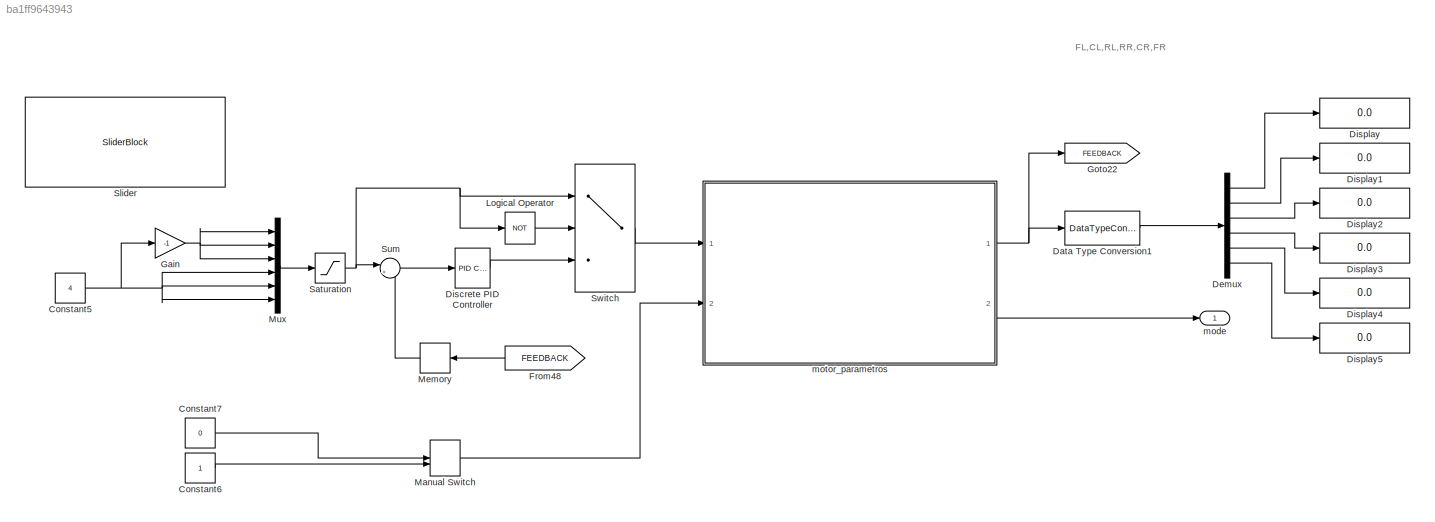
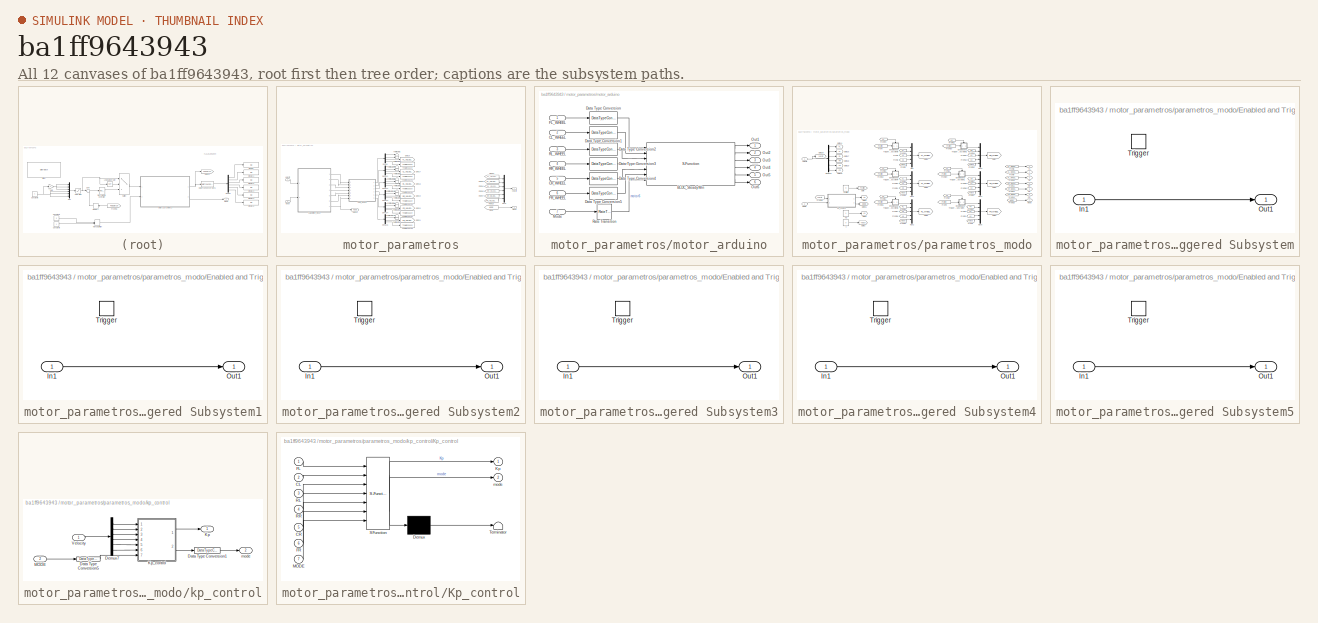
[diagram: thumbnail index - all 12 canvases of the model, root first then tree order]
MODEL slx_ba1ff9643943
KIND model
CONFIG AbsTol = auto
CONFIG EnableMultiTasking = on
CONFIG FixedStep = auto
CONFIG MaxStep = auto
CONFIG MinStep = auto
CONFIG RelTol = 1e-3
CONFIG SampleTimeConstraint = Unconstrained
CONFIG SolverName = FixedStepAuto
CONFIG StartTime = 0.0
CONFIG StopTime = inf
BLOCK [Constant] Constant5
  Value = 4
BLOCK [Constant] Constant6
BLOCK [Constant] Constant7
  Value = 0
BLOCK [DataTypeConversion] Data Type Conversion1
  OutDataTypeStr = double
  RndMeth = Floor
  SaturateOnIntegerOverflow = off
BLOCK [Demux] Demux
  Outputs = 6
  Ports = [1, 6]
BLOCK [Reference] Discrete PID Controller  REF=slpidlib/PID Controller
  Ports = [1, 1]
  SourceBlock = slpidlib/PID Controller
  SourceProductBaseCode = SL
  SourceType = PID 1dof
BLOCK [Display] Display
  Decimation = 1
  Ports = [1]
BLOCK [Display] Display1
  Decimation = 1
  Ports = [1]
BLOCK [Display] Display2
  Decimation = 1
  Ports = [1]
BLOCK [Display] Display3
  Decimation = 1
  Ports = [1]
BLOCK [Display] Display4
  Decimation = 1
  Ports = [1]
BLOCK [Display] Display5
  Decimation = 1
  Ports = [1]
BLOCK [From] From48
  GotoTag = FEEDBACK
  NameLocation = top
BLOCK [Gain] Gain
  Gain = -1
BLOCK [Goto] Goto22
  GotoTag = FEEDBACK
BLOCK [Logic] Logical Operator
  AllPortsSameDT = off
  Operator = NOT
  OutDataTypeStr = boolean
  Ports = [1, 1]
BLOCK [ManualSwitch] Manual Switch
BLOCK [Memory] Memory
  NameLocation = top
BLOCK [Mux] Mux
  DisplayOption = bar
  Inputs = 6
  Ports = [6, 1]
BLOCK [Saturate] Saturation
  LowerLimit = -10
  UpperLimit = 10
BLOCK [SliderBlock] Slider
  ScaleMax = 9
  ScaleMin = -9
BLOCK [Sum] Sum
  Inputs = |+-
  Ports = [2, 1]
BLOCK [Switch] Switch
  Criteria = u2 ~= 0
  InputSameDT = off
  NameLocation = top
  SaturateOnIntegerOverflow = off
BLOCK [Outport] mode
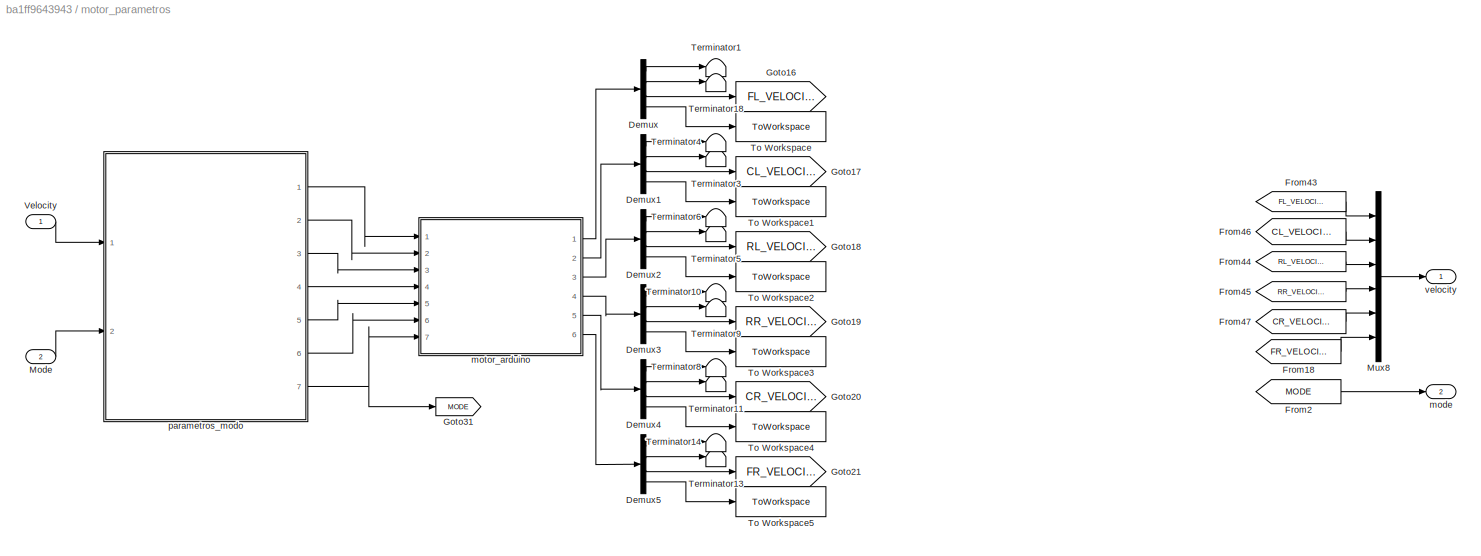
BLOCK [SubSystem] motor_parametros
  Ports = [2, 2]
  RequestExecContextInheritance = off
BLOCK [Demux] motor_parametros/Demux
  Ports = [1, 4]
BLOCK [Demux] motor_parametros/Demux1
  Ports = [1, 4]
BLOCK [Demux] motor_parametros/Demux2
  Ports = [1, 4]
BLOCK [Demux] motor_parametros/Demux3
  Ports = [1, 4]
BLOCK [Demux] motor_parametros/Demux4
  Ports = [1, 4]
BLOCK [Demux] motor_parametros/Demux5
  Ports = [1, 4]
BLOCK [From] motor_parametros/From18
  GotoTag = FR_VELOCITY
BLOCK [From] motor_parametros/From2
  GotoTag = MODE
BLOCK [From] motor_parametros/From43
  GotoTag = FL_VELOCITY
BLOCK [From] motor_parametros/From44
  GotoTag = RL_VELOCITY
BLOCK [From] motor_parametros/From45
  GotoTag = RR_VELOCITY
BLOCK [From] motor_parametros/From46
  GotoTag = CL_VELOCITY
BLOCK [From] motor_parametros/From47
  GotoTag = CR_VELOCITY
BLOCK [Goto] motor_parametros/Goto16
  GotoTag = FL_VELOCITY
BLOCK [Goto] motor_parametros/Goto17
  GotoTag = CL_VELOCITY
BLOCK [Goto] motor_parametros/Goto18
  GotoTag = RL_VELOCITY
BLOCK [Goto] motor_parametros/Goto19
  GotoTag = RR_VELOCITY
BLOCK [Goto] motor_parametros/Goto20
  GotoTag = CR_VELOCITY
BLOCK [Goto] motor_parametros/Goto21
  GotoTag = FR_VELOCITY
BLOCK [Goto] motor_parametros/Goto31
  GotoTag = MODE
BLOCK [Inport] motor_parametros/Mode
  Port = 2
BLOCK [Mux] motor_parametros/Mux8
  DisplayOption = bar
  Inputs = 6
  Ports = [6, 1]
BLOCK [Terminator] motor_parametros/Terminator1
BLOCK [Terminator] motor_parametros/Terminator10
BLOCK [Terminator] motor_parametros/Terminator11
BLOCK [Terminator] motor_parametros/Terminator13
BLOCK [Terminator] motor_parametros/Terminator14
BLOCK [Terminator] motor_parametros/Terminator18
BLOCK [Terminator] motor_parametros/Terminator3
BLOCK [Terminator] motor_parametros/Terminator4
BLOCK [Terminator] motor_parametros/Terminator5
BLOCK [Terminator] motor_parametros/Terminator6
BLOCK [Terminator] motor_parametros/Terminator8
BLOCK [Terminator] motor_parametros/Terminator9
BLOCK [ToWorkspace] motor_parametros/To Workspace
  FixptAsFi = on
  MaxDataPoints = inf
  Ports = [1]
  SampleTime = -1
  SaveFormat = Timeseries
  VariableName = FL
BLOCK [ToWorkspace] motor_parametros/To Workspace1
  FixptAsFi = on
  MaxDataPoints = inf
  Ports = [1]
  SampleTime = -1
  SaveFormat = Timeseries
  VariableName = CL
BLOCK [ToWorkspace] motor_parametros/To Workspace2
  FixptAsFi = on
  MaxDataPoints = inf
  Ports = [1]
  SampleTime = -1
  SaveFormat = Timeseries
  VariableName = RL
BLOCK [ToWorkspace] motor_parametros/To Workspace3
  FixptAsFi = on
  MaxDataPoints = inf
  Ports = [1]
  SampleTime = -1
  SaveFormat = Timeseries
  VariableName = RR
BLOCK [ToWorkspace] motor_parametros/To Workspace4
  FixptAsFi = on
  MaxDataPoints = inf
  Ports = [1]
  SampleTime = -1
  SaveFormat = Timeseries
  VariableName = CR
BLOCK [ToWorkspace] motor_parametros/To Workspace5
  FixptAsFi = on
  MaxDataPoints = inf
  Ports = [1]
  SampleTime = -1
  SaveFormat = Timeseries
  VariableName = FR
BLOCK [Inport] motor_parametros/Velocity
BLOCK [Outport] motor_parametros/mode
  Port = 2
BLOCK [SubSystem] motor_parametros/motor_arduino
  Ports = [7, 6]
  RequestExecContextInheritance = off
BLOCK [S-Function] motor_parametros/motor_arduino/BLDC_SteadyWin
  CopyFcn = set_param(gcbh,'LinkStatus','none')
  EnableBusSupport = off
  FunctionName = BLDC_SteadyWin
  InitFcn = try, set_param(gcb,'FunctionName','BLDC_SteadyWin'), end
  OpenFcn = sfunctionwizard(gcbh)
  Ports = [7, 6]
  PreSaveFcn = try, set_param(gcb,'FunctionName','BLDC_SteadyWin'), end
  SFcnIsStateOwnerBlock = off
  SFunctionDeploymentMode = off
  SFunctionModules = BLDC_SteadyWin_wrapper
BLOCK [Inport] motor_parametros/motor_arduino/CL_WHEEL
  Port = 2
BLOCK [Inport] motor_parametros/motor_arduino/CR_WHEEL
  Port = 5
BLOCK [DataTypeConversion] motor_parametros/motor_arduino/Data Type Conversion
  OutDataTypeStr = single
  RndMeth = Floor
  SaturateOnIntegerOverflow = off
BLOCK [DataTypeConversion] motor_parametros/motor_arduino/Data Type Conversion1
  OutDataTypeStr = single
  RndMeth = Floor
  SaturateOnIntegerOverflow = off
BLOCK [DataTypeConversion] motor_parametros/motor_arduino/Data Type Conversion2
  OutDataTypeStr = single
  RndMeth = Floor
  SaturateOnIntegerOverflow = off
BLOCK [DataTypeConversion] motor_parametros/motor_arduino/Data Type Conversion3
  OutDataTypeStr = single
  RndMeth = Floor
  SaturateOnIntegerOverflow = off
BLOCK [DataTypeConversion] motor_parametros/motor_arduino/Data Type Conversion4
  OutDataTypeStr = single
  RndMeth = Floor
  SaturateOnIntegerOverflow = off
BLOCK [DataTypeConversion] motor_parametros/motor_arduino/Data Type Conversion5
  OutDataTypeStr = single
  RndMeth = Floor
  SaturateOnIntegerOverflow = off
BLOCK [Inport] motor_parametros/motor_arduino/FL_WHEEL
BLOCK [Inport] motor_parametros/motor_arduino/FR_WHEEL
  Port = 6
BLOCK [Inport] motor_parametros/motor_arduino/Mode
  Port = 7
BLOCK [Outport] motor_parametros/motor_arduino/Out1
BLOCK [Outport] motor_parametros/motor_arduino/Out2
  Port = 2
BLOCK [Outport] motor_parametros/motor_arduino/Out3
  Port = 3
BLOCK [Outport] motor_parametros/motor_arduino/Out4
  Port = 4
BLOCK [Outport] motor_parametros/motor_arduino/Out5
  Port = 5
BLOCK [Outport] motor_parametros/motor_arduino/Out6
  Port = 6
BLOCK [Inport] motor_parametros/motor_arduino/RL_WHEEL
  Port = 3
BLOCK [Inport] motor_parametros/motor_arduino/RR_WHEEL
  Port = 4
BLOCK [RateTransition] motor_parametros/motor_arduino/Rate Transition
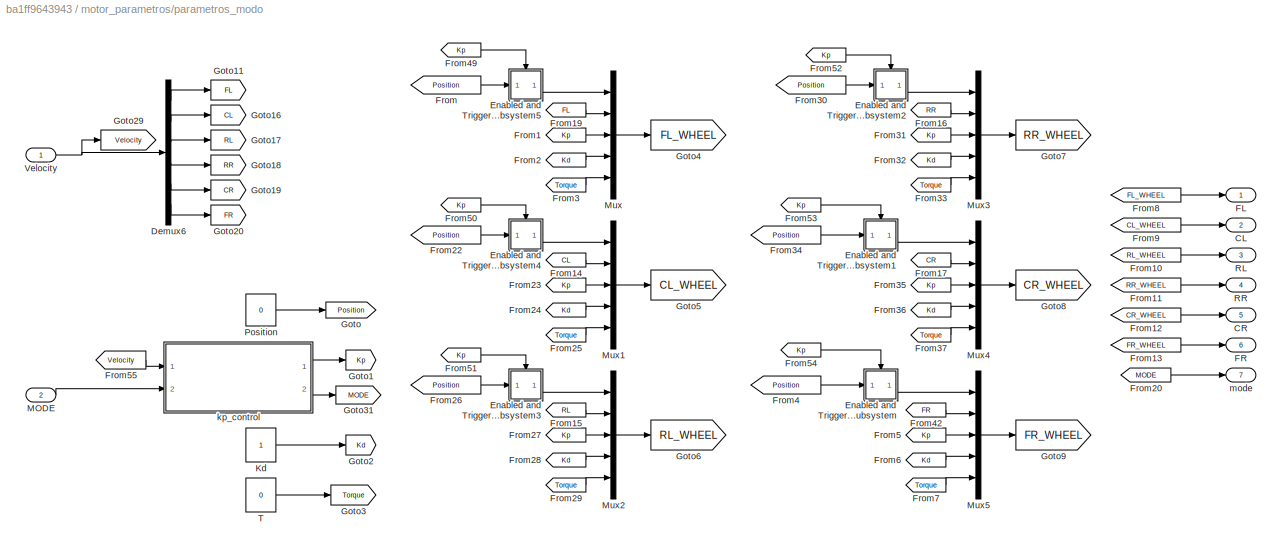
BLOCK [SubSystem] motor_parametros/parametros_modo
  Ports = [2, 7]
  RequestExecContextInheritance = off
BLOCK [Outport] motor_parametros/parametros_modo/CL
  Port = 2
BLOCK [Outport] motor_parametros/parametros_modo/CR
  Port = 5
BLOCK [Demux] motor_parametros/parametros_modo/Demux6
  Outputs = 6
  Ports = [1, 6]
BLOCK [SubSystem] motor_parametros/parametros_modo/Enabled and Triggered Subsystem
  Ports = [1, 1, 0, 1]
  RequestExecContextInheritance = off
  TreatAsAtomicUnit = on
BLOCK [Inport] motor_parametros/parametros_modo/Enabled and Triggered Subsystem/In1
BLOCK [Outport] motor_parametros/parametros_modo/Enabled and Triggered Subsystem/Out1
BLOCK [TriggerPort] motor_parametros/parametros_modo/Enabled and Triggered Subsystem/Trigger
  Ports = []
  StatesWhenEnabling = held
  VariantControl = Variant
BLOCK [SubSystem] motor_parametros/parametros_modo/Enabled and Triggered Subsystem1
  Ports = [1, 1, 0, 1]
  RequestExecContextInheritance = off
  TreatAsAtomicUnit = on
BLOCK [Inport] motor_parametros/parametros_modo/Enabled and Triggered Subsystem1/In1
BLOCK [Outport] motor_parametros/parametros_modo/Enabled and Triggered Subsystem1/Out1
BLOCK [TriggerPort] motor_parametros/parametros_modo/Enabled and Triggered Subsystem1/Trigger
  Ports = []
  StatesWhenEnabling = held
  VariantControl = Variant
BLOCK [SubSystem] motor_parametros/parametros_modo/Enabled and Triggered Subsystem2
  Ports = [1, 1, 0, 1]
  RequestExecContextInheritance = off
  TreatAsAtomicUnit = on
BLOCK [Inport] motor_parametros/parametros_modo/Enabled and Triggered Subsystem2/In1
BLOCK [Outport] motor_parametros/parametros_modo/Enabled and Triggered Subsystem2/Out1
BLOCK [TriggerPort] motor_parametros/parametros_modo/Enabled and Triggered Subsystem2/Trigger
  Ports = []
  StatesWhenEnabling = held
  VariantControl = Variant
BLOCK [SubSystem] motor_parametros/parametros_modo/Enabled and Triggered Subsystem3
  Ports = [1, 1, 0, 1]
  RequestExecContextInheritance = off
  TreatAsAtomicUnit = on
BLOCK [Inport] motor_parametros/parametros_modo/Enabled and Triggered Subsystem3/In1
BLOCK [Outport] motor_parametros/parametros_modo/Enabled and Triggered Subsystem3/Out1
BLOCK [TriggerPort] motor_parametros/parametros_modo/Enabled and Triggered Subsystem3/Trigger
  Ports = []
  StatesWhenEnabling = held
  VariantControl = Variant
BLOCK [SubSystem] motor_parametros/parametros_modo/Enabled and Triggered Subsystem4
  Ports = [1, 1, 0, 1]
  RequestExecContextInheritance = off
  TreatAsAtomicUnit = on
BLOCK [Inport] motor_parametros/parametros_modo/Enabled and Triggered Subsystem4/In1
BLOCK [Outport] motor_parametros/parametros_modo/Enabled and Triggered Subsystem4/Out1
BLOCK [TriggerPort] motor_parametros/parametros_modo/Enabled and Triggered Subsystem4/Trigger
  Ports = []
  StatesWhenEnabling = held
  VariantControl = Variant
BLOCK [SubSystem] motor_parametros/parametros_modo/Enabled and Triggered Subsystem5
  Ports = [1, 1, 0, 1]
  RequestExecContextInheritance = off
  TreatAsAtomicUnit = on
BLOCK [Inport] motor_parametros/parametros_modo/Enabled and Triggered Subsystem5/In1
BLOCK [Outport] motor_parametros/parametros_modo/Enabled and Triggered Subsystem5/Out1
BLOCK [TriggerPort] motor_parametros/parametros_modo/Enabled and Triggered Subsystem5/Trigger
  Ports = []
  StatesWhenEnabling = held
  VariantControl = Variant
BLOCK [Outport] motor_parametros/parametros_modo/FL
BLOCK [Outport] motor_parametros/parametros_modo/FR
  Port = 6
BLOCK [From] motor_parametros/parametros_modo/From
  GotoTag = Position
BLOCK [From] motor_parametros/parametros_modo/From1
  GotoTag = Kp
BLOCK [From] motor_parametros/parametros_modo/From10
  GotoTag = RL_WHEEL
BLOCK [From] motor_parametros/parametros_modo/From11
  GotoTag = RR_WHEEL
BLOCK [From] motor_parametros/parametros_modo/From12
  GotoTag = CR_WHEEL
BLOCK [From] motor_parametros/parametros_modo/From13
  GotoTag = FR_WHEEL
BLOCK [From] motor_parametros/parametros_modo/From14
  GotoTag = CL
BLOCK [From] motor_parametros/parametros_modo/From15
  GotoTag = RL
BLOCK [From] motor_parametros/parametros_modo/From16
  GotoTag = RR
BLOCK [From] motor_parametros/parametros_modo/From17
  GotoTag = CR
BLOCK [From] motor_parametros/parametros_modo/From19
  GotoTag = FL
BLOCK [From] motor_parametros/parametros_modo/From2
  GotoTag = Kd
BLOCK [From] motor_parametros/parametros_modo/From20
  GotoTag = MODE
BLOCK [From] motor_parametros/parametros_modo/From22
  GotoTag = Position
BLOCK [From] motor_parametros/parametros_modo/From23
  GotoTag = Kp
BLOCK [From] motor_parametros/parametros_modo/From24
  GotoTag = Kd
BLOCK [From] motor_parametros/parametros_modo/From25
  GotoTag = Torque
BLOCK [From] motor_parametros/parametros_modo/From26
  GotoTag = Position
BLOCK [From] motor_parametros/parametros_modo/From27
  GotoTag = Kp
BLOCK [From] motor_parametros/parametros_modo/From28
  GotoTag = Kd
BLOCK [From] motor_parametros/parametros_modo/From29
  GotoTag = Torque
BLOCK [From] motor_parametros/parametros_modo/From3
  GotoTag = Torque
BLOCK [From] motor_parametros/parametros_modo/From30
  GotoTag = Position
BLOCK [From] motor_parametros/parametros_modo/From31
  GotoTag = Kp
  NameLocation = top
BLOCK [From] motor_parametros/parametros_modo/From32
  GotoTag = Kd
BLOCK [From] motor_parametros/parametros_modo/From33
  GotoTag = Torque
BLOCK [From] motor_parametros/parametros_modo/From34
  GotoTag = Position
BLOCK [From] motor_parametros/parametros_modo/From35
  GotoTag = Kp
BLOCK [From] motor_parametros/parametros_modo/From36
  GotoTag = Kd
BLOCK [From] motor_parametros/parametros_modo/From37
  GotoTag = Torque
BLOCK [From] motor_parametros/parametros_modo/From4
  GotoTag = Position
BLOCK [From] motor_parametros/parametros_modo/From42
  GotoTag = FR
BLOCK [From] motor_parametros/parametros_modo/From49
  GotoTag = Kp
BLOCK [From] motor_parametros/parametros_modo/From5
  GotoTag = Kp
BLOCK [From] motor_parametros/parametros_modo/From50
  GotoTag = Kp
BLOCK [From] motor_parametros/parametros_modo/From51
  GotoTag = Kp
BLOCK [From] motor_parametros/parametros_modo/From52
  GotoTag = Kp
BLOCK [From] motor_parametros/parametros_modo/From53
  GotoTag = Kp
BLOCK [From] motor_parametros/parametros_modo/From54
  GotoTag = Kp
BLOCK [From] motor_parametros/parametros_modo/From55
  GotoTag = Velocity
BLOCK [From] motor_parametros/parametros_modo/From6
  GotoTag = Kd
BLOCK [From] motor_parametros/parametros_modo/From7
  GotoTag = Torque
BLOCK [From] motor_parametros/parametros_modo/From8
  GotoTag = FL_WHEEL
BLOCK [From] motor_parametros/parametros_modo/From9
  GotoTag = CL_WHEEL
BLOCK [Goto] motor_parametros/parametros_modo/Goto
  GotoTag = Position
BLOCK [Goto] motor_parametros/parametros_modo/Goto1
  GotoTag = Kp
BLOCK [Goto] motor_parametros/parametros_modo/Goto11
  GotoTag = FL
BLOCK [Goto] motor_parametros/parametros_modo/Goto16
  GotoTag = CL
BLOCK [Goto] motor_parametros/parametros_modo/Goto17
  GotoTag = RL
BLOCK [Goto] motor_parametros/parametros_modo/Goto18
  GotoTag = RR
BLOCK [Goto] motor_parametros/parametros_modo/Goto19
  GotoTag = CR
BLOCK [Goto] motor_parametros/parametros_modo/Goto2
  GotoTag = Kd
BLOCK [Goto] motor_parametros/parametros_modo/Goto20
  GotoTag = FR
BLOCK [Goto] motor_parametros/parametros_modo/Goto29
  GotoTag = Velocity
BLOCK [Goto] motor_parametros/parametros_modo/Goto3
  GotoTag = Torque
BLOCK [Goto] motor_parametros/parametros_modo/Goto31
  GotoTag = MODE
BLOCK [Goto] motor_parametros/parametros_modo/Goto4
  GotoTag = FL_WHEEL
BLOCK [Goto] motor_parametros/parametros_modo/Goto5
  GotoTag = CL_WHEEL
BLOCK [Goto] motor_parametros/parametros_modo/Goto6
  GotoTag = RL_WHEEL
BLOCK [Goto] motor_parametros/parametros_modo/Goto7
  GotoTag = RR_WHEEL
BLOCK [Goto] motor_parametros/parametros_modo/Goto8
  GotoTag = CR_WHEEL
BLOCK [Goto] motor_parametros/parametros_modo/Goto9
  GotoTag = FR_WHEEL
BLOCK [Constant] motor_parametros/parametros_modo/Kd
  SampleTime = -1
BLOCK [Inport] motor_parametros/parametros_modo/MODE
  Port = 2
BLOCK [Mux] motor_parametros/parametros_modo/Mux
  DisplayOption = bar
  Inputs = 5
  Ports = [5, 1]
BLOCK [Mux] motor_parametros/parametros_modo/Mux1
  DisplayOption = bar
  Inputs = 5
  Ports = [5, 1]
BLOCK [Mux] motor_parametros/parametros_modo/Mux2
  DisplayOption = bar
  Inputs = 5
  Ports = [5, 1]
BLOCK [Mux] motor_parametros/parametros_modo/Mux3
  DisplayOption = bar
  Inputs = 5
  Ports = [5, 1]
BLOCK [Mux] motor_parametros/parametros_modo/Mux4
  DisplayOption = bar
  Inputs = 5
  Ports = [5, 1]
BLOCK [Mux] motor_parametros/parametros_modo/Mux5
  DisplayOption = bar
  Inputs = 5
  Ports = [5, 1]
BLOCK [Constant] motor_parametros/parametros_modo/Position
  SampleTime = -1
  Value = 0
BLOCK [Outport] motor_parametros/parametros_modo/RL
  Port = 3
BLOCK [Outport] motor_parametros/parametros_modo/RR
  Port = 4
BLOCK [Constant] motor_parametros/parametros_modo/T
  SampleTime = -1
  Value = 0
BLOCK [Inport] motor_parametros/parametros_modo/Velocity
BLOCK [SubSystem] motor_parametros/parametros_modo/kp_control
  Ports = [2, 2]
  RequestExecContextInheritance = off
BLOCK [DataTypeConversion] motor_parametros/parametros_modo/kp_control/Data Type Conversion1
  OutDataTypeStr = uint8
  RndMeth = Floor
  SaturateOnIntegerOverflow = off
BLOCK [DataTypeConversion] motor_parametros/parametros_modo/kp_control/Data Type Conversion5
  OutDataTypeStr = double
  RndMeth = Floor
  SaturateOnIntegerOverflow = off
BLOCK [Demux] motor_parametros/parametros_modo/kp_control/Demux7
  Outputs = 6
  Ports = [1, 6]
BLOCK [Outport] motor_parametros/parametros_modo/kp_control/Kp
BLOCK [SubSystem] motor_parametros/parametros_modo/kp_control/Kp_control
  ErrorFcn = Stateflow.Translate.translate
  PermitHierarchicalResolution = ExplicitOnly
  Ports = [7, 2]
  RequestExecContextInheritance = off
  SFBlockType = MATLAB Function
  TreatAsAtomicUnit = on
BLOCK [Demux] motor_parametros/parametros_modo/kp_control/Kp_control/ Demux 
  Outputs = 1
  Ports = [1, 1]
BLOCK [S-Function] motor_parametros/parametros_modo/kp_control/Kp_control/ SFunction 
  EnableBusSupport = on
  FunctionName = sf_sfun
  PortCounts = [7 3]
  Ports = [7, 3]
  SFcnIsStateOwnerBlock = off
  SFunctionDeploymentMode = off
  Tag = Stateflow S-Function 1
BLOCK [Terminator] motor_parametros/parametros_modo/kp_control/Kp_control/ Terminator 
BLOCK [Inport] motor_parametros/parametros_modo/kp_control/Kp_control/CL
  Port = 2
BLOCK [Inport] motor_parametros/parametros_modo/kp_control/Kp_control/CR
  Port = 5
BLOCK [Inport] motor_parametros/parametros_modo/kp_control/Kp_control/FL
BLOCK [Inport] motor_parametros/parametros_modo/kp_control/Kp_control/FR
  Port = 6
BLOCK [Outport] motor_parametros/parametros_modo/kp_control/Kp_control/Kp
BLOCK [Inport] motor_parametros/parametros_modo/kp_control/Kp_control/MODE
  Port = 7
BLOCK [Inport] motor_parametros/parametros_modo/kp_control/Kp_control/RL
  Port = 3
BLOCK [Inport] motor_parametros/parametros_modo/kp_control/Kp_control/RR
  Port = 4
BLOCK [Outport] motor_parametros/parametros_modo/kp_control/Kp_control/mode
  Port = 2
BLOCK [Inport] motor_parametros/parametros_modo/kp_control/MODE
  Port = 2
BLOCK [Inport] motor_parametros/parametros_modo/kp_control/Velocity
BLOCK [Outport] motor_parametros/parametros_modo/kp_control/mode
  Port = 2
BLOCK [Outport] motor_parametros/parametros_modo/mode
  Port = 7
BLOCK [Outport] motor_parametros/velocity
ANNOTATION (root): FL,CL,RL,RR,CR,FR
NET Constant5:1 -> Gain:1, Mux:4, Mux:5, Mux:6
LINE Constant6:1 -> Manual Switch:2
LINE Constant7:1 -> Manual Switch:1
LINE Data Type Conversion1:1 -> Demux:1
LINE Demux:1 -> Display:1
LINE Demux:2 -> Display1:1
LINE Demux:3 -> Display2:1
LINE Demux:4 -> Display3:1
LINE Demux:5 -> Display4:1
LINE Demux:6 -> Display5:1
LINE Discrete PID Controller:1 -> Switch:3
LINE From48:1 -> Memory:1
NET Gain:1 -> Mux:1, Mux:2, Mux:3
LINE Logical Operator:1 -> Switch:2
LINE Manual Switch:1 -> motor_parametros:2
LINE Memory:1 -> Sum:2
LINE Mux:1 -> Saturation:1
NET Saturation:1 -> Logical Operator:1, Sum:1, Switch:1
LINE Sum:1 -> Discrete PID Controller:1
LINE Switch:1 -> motor_parametros:1
LINE motor_parametros/Demux1:1 -> motor_parametros/Terminator4:1
LINE motor_parametros/Demux1:2 -> motor_parametros/Terminator3:1
LINE motor_parametros/Demux1:3 -> motor_parametros/Goto17:1
LINE motor_parametros/Demux1:4 -> motor_parametros/To Workspace1:1
LINE motor_parametros/Demux2:1 -> motor_parametros/Terminator6:1
LINE motor_parametros/Demux2:2 -> motor_parametros/Terminator5:1
LINE motor_parametros/Demux2:3 -> motor_parametros/Goto18:1
LINE motor_parametros/Demux2:4 -> motor_parametros/To Workspace2:1
LINE motor_parametros/Demux3:1 -> motor_parametros/Terminator10:1
LINE motor_parametros/Demux3:2 -> motor_parametros/Terminator9:1
LINE motor_parametros/Demux3:3 -> motor_parametros/Goto19:1
LINE motor_parametros/Demux3:4 -> motor_parametros/To Workspace3:1
LINE motor_parametros/Demux4:1 -> motor_parametros/Terminator8:1
LINE motor_parametros/Demux4:2 -> motor_parametros/Terminator11:1
LINE motor_parametros/Demux4:3 -> motor_parametros/Goto20:1
LINE motor_parametros/Demux4:4 -> motor_parametros/To Workspace4:1
LINE motor_parametros/Demux5:1 -> motor_parametros/Terminator14:1
LINE motor_parametros/Demux5:2 -> motor_parametros/Terminator13:1
LINE motor_parametros/Demux5:3 -> motor_parametros/Goto21:1
LINE motor_parametros/Demux5:4 -> motor_parametros/To Workspace5:1
LINE motor_parametros/Demux:1 -> motor_parametros/Terminator1:1
LINE motor_parametros/Demux:2 -> motor_parametros/Terminator18:1
LINE motor_parametros/Demux:3 -> motor_parametros/Goto16:1
LINE motor_parametros/Demux:4 -> motor_parametros/To Workspace:1
LINE motor_parametros/From18:1 -> motor_parametros/Mux8:6
LINE motor_parametros/From2:1 -> motor_parametros/mode:1
LINE motor_parametros/From43:1 -> motor_parametros/Mux8:1
LINE motor_parametros/From44:1 -> motor_parametros/Mux8:3
LINE motor_parametros/From45:1 -> motor_parametros/Mux8:4
LINE motor_parametros/From46:1 -> motor_parametros/Mux8:2
LINE motor_parametros/From47:1 -> motor_parametros/Mux8:5
LINE motor_parametros/Mode:1 -> motor_parametros/parametros_modo:2
LINE motor_parametros/Mux8:1 -> motor_parametros/velocity:1
LINE motor_parametros/Velocity:1 -> motor_parametros/parametros_modo:1
LINE motor_parametros/motor_arduino/BLDC_SteadyWin:1 -> motor_parametros/motor_arduino/Out1:1
LINE motor_parametros/motor_arduino/BLDC_SteadyWin:2 -> motor_parametros/motor_arduino/Out2:1
LINE motor_parametros/motor_arduino/BLDC_SteadyWin:3 -> motor_parametros/motor_arduino/Out3:1
LINE motor_parametros/motor_arduino/BLDC_SteadyWin:4 -> motor_parametros/motor_arduino/Out4:1
LINE motor_parametros/motor_arduino/BLDC_SteadyWin:5 -> motor_parametros/motor_arduino/Out5:1
LINE motor_parametros/motor_arduino/BLDC_SteadyWin:6 -> motor_parametros/motor_arduino/Out6:1
LINE motor_parametros/motor_arduino/CL_WHEEL:1 -> motor_parametros/motor_arduino/Data Type Conversion1:1
LINE motor_parametros/motor_arduino/CR_WHEEL:1 -> motor_parametros/motor_arduino/Data Type Conversion4:1
LINE motor_parametros/motor_arduino/Data Type Conversion1:1 -> motor_parametros/motor_arduino/BLDC_SteadyWin:2
LINE motor_parametros/motor_arduino/Data Type Conversion2:1 -> motor_parametros/motor_arduino/BLDC_SteadyWin:3
LINE motor_parametros/motor_arduino/Data Type Conversion3:1 -> motor_parametros/motor_arduino/BLDC_SteadyWin:4
LINE motor_parametros/motor_arduino/Data Type Conversion4:1 -> motor_parametros/motor_arduino/BLDC_SteadyWin:5
LINE motor_parametros/motor_arduino/Data Type Conversion5:1 -> motor_parametros/motor_arduino/BLDC_SteadyWin:6
LINE motor_parametros/motor_arduino/Data Type Conversion:1 -> motor_parametros/motor_arduino/BLDC_SteadyWin:1
LINE motor_parametros/motor_arduino/FL_WHEEL:1 -> motor_parametros/motor_arduino/Data Type Conversion:1
LINE motor_parametros/motor_arduino/FR_WHEEL:1 -> motor_parametros/motor_arduino/Data Type Conversion5:1
LINE motor_parametros/motor_arduino/Mode:1 -> motor_parametros/motor_arduino/Rate Transition:1
LINE motor_parametros/motor_arduino/RL_WHEEL:1 -> motor_parametros/motor_arduino/Data Type Conversion2:1
LINE motor_parametros/motor_arduino/RR_WHEEL:1 -> motor_parametros/motor_arduino/Data Type Conversion3:1
LINE motor_parametros/motor_arduino/Rate Transition:1 -> motor_parametros/motor_arduino/BLDC_SteadyWin:7
LINE motor_parametros/motor_arduino:1 -> motor_parametros/Demux:1
LINE motor_parametros/motor_arduino:2 -> motor_parametros/Demux1:1
LINE motor_parametros/motor_arduino:3 -> motor_parametros/Demux2:1
LINE motor_parametros/motor_arduino:4 -> motor_parametros/Demux3:1
LINE motor_parametros/motor_arduino:5 -> motor_parametros/Demux4:1
LINE motor_parametros/motor_arduino:6 -> motor_parametros/Demux5:1
LINE motor_parametros/parametros_modo/Demux6:1 -> motor_parametros/parametros_modo/Goto11:1
LINE motor_parametros/parametros_modo/Demux6:2 -> motor_parametros/parametros_modo/Goto16:1
LINE motor_parametros/parametros_modo/Demux6:3 -> motor_parametros/parametros_modo/Goto17:1
LINE motor_parametros/parametros_modo/Demux6:4 -> motor_parametros/parametros_modo/Goto18:1
LINE motor_parametros/parametros_modo/Demux6:5 -> motor_parametros/parametros_modo/Goto19:1
LINE motor_parametros/parametros_modo/Demux6:6 -> motor_parametros/parametros_modo/Goto20:1
LINE motor_parametros/parametros_modo/Enabled and Triggered Subsystem/In1:1 -> motor_parametros/parametros_modo/Enabled and Triggered Subsystem/Out1:1
LINE motor_parametros/parametros_modo/Enabled and Triggered Subsystem1/In1:1 -> motor_parametros/parametros_modo/Enabled and Triggered Subsystem1/Out1:1
LINE motor_parametros/parametros_modo/Enabled and Triggered Subsystem1:1 -> motor_parametros/parametros_modo/Mux4:1
LINE motor_parametros/parametros_modo/Enabled and Triggered Subsystem2/In1:1 -> motor_parametros/parametros_modo/Enabled and Triggered Subsystem2/Out1:1
LINE motor_parametros/parametros_modo/Enabled and Triggered Subsystem2:1 -> motor_parametros/parametros_modo/Mux3:1
LINE motor_parametros/parametros_modo/Enabled and Triggered Subsystem3/In1:1 -> motor_parametros/parametros_modo/Enabled and Triggered Subsystem3/Out1:1
LINE motor_parametros/parametros_modo/Enabled and Triggered Subsystem3:1 -> motor_parametros/parametros_modo/Mux2:1
LINE motor_parametros/parametros_modo/Enabled and Triggered Subsystem4/In1:1 -> motor_parametros/parametros_modo/Enabled and Triggered Subsystem4/Out1:1
LINE motor_parametros/parametros_modo/Enabled and Triggered Subsystem4:1 -> motor_parametros/parametros_modo/Mux1:1
LINE motor_parametros/parametros_modo/Enabled and Triggered Subsystem5/In1:1 -> motor_parametros/parametros_modo/Enabled and Triggered Subsystem5/Out1:1
LINE motor_parametros/parametros_modo/Enabled and Triggered Subsystem5:1 -> motor_parametros/parametros_modo/Mux:1
LINE motor_parametros/parametros_modo/Enabled and Triggered Subsystem:1 -> motor_parametros/parametros_modo/Mux5:1
LINE motor_parametros/parametros_modo/From10:1 -> motor_parametros/parametros_modo/RL:1
LINE motor_parametros/parametros_modo/From11:1 -> motor_parametros/parametros_modo/RR:1
LINE motor_parametros/parametros_modo/From12:1 -> motor_parametros/parametros_modo/CR:1
LINE motor_parametros/parametros_modo/From13:1 -> motor_parametros/parametros_modo/FR:1
LINE motor_parametros/parametros_modo/From14:1 -> motor_parametros/parametros_modo/Mux1:2
LINE motor_parametros/parametros_modo/From15:1 -> motor_parametros/parametros_modo/Mux2:2
LINE motor_parametros/parametros_modo/From16:1 -> motor_parametros/parametros_modo/Mux3:2
LINE motor_parametros/parametros_modo/From17:1 -> motor_parametros/parametros_modo/Mux4:2
LINE motor_parametros/parametros_modo/From19:1 -> motor_parametros/parametros_modo/Mux:2
LINE motor_parametros/parametros_modo/From1:1 -> motor_parametros/parametros_modo/Mux:3
LINE motor_parametros/parametros_modo/From20:1 -> motor_parametros/parametros_modo/mode:1
LINE motor_parametros/parametros_modo/From22:1 -> motor_parametros/parametros_modo/Enabled and Triggered Subsystem4:1
LINE motor_parametros/parametros_modo/From23:1 -> motor_parametros/parametros_modo/Mux1:3
LINE motor_parametros/parametros_modo/From24:1 -> motor_parametros/parametros_modo/Mux1:4
LINE motor_parametros/parametros_modo/From25:1 -> motor_parametros/parametros_modo/Mux1:5
LINE motor_parametros/parametros_modo/From26:1 -> motor_parametros/parametros_modo/Enabled and Triggered Subsystem3:1
LINE motor_parametros/parametros_modo/From27:1 -> motor_parametros/parametros_modo/Mux2:3
LINE motor_parametros/parametros_modo/From28:1 -> motor_parametros/parametros_modo/Mux2:4
LINE motor_parametros/parametros_modo/From29:1 -> motor_parametros/parametros_modo/Mux2:5
LINE motor_parametros/parametros_modo/From2:1 -> motor_parametros/parametros_modo/Mux:4
LINE motor_parametros/parametros_modo/From30:1 -> motor_parametros/parametros_modo/Enabled and Triggered Subsystem2:1
LINE motor_parametros/parametros_modo/From31:1 -> motor_parametros/parametros_modo/Mux3:3
LINE motor_parametros/parametros_modo/From32:1 -> motor_parametros/parametros_modo/Mux3:4
LINE motor_parametros/parametros_modo/From33:1 -> motor_parametros/parametros_modo/Mux3:5
LINE motor_parametros/parametros_modo/From34:1 -> motor_parametros/parametros_modo/Enabled and Triggered Subsystem1:1
LINE motor_parametros/parametros_modo/From35:1 -> motor_parametros/parametros_modo/Mux4:3
LINE motor_parametros/parametros_modo/From36:1 -> motor_parametros/parametros_modo/Mux4:4
LINE motor_parametros/parametros_modo/From37:1 -> motor_parametros/parametros_modo/Mux4:5
LINE motor_parametros/parametros_modo/From3:1 -> motor_parametros/parametros_modo/Mux:5
LINE motor_parametros/parametros_modo/From42:1 -> motor_parametros/parametros_modo/Mux5:2
LINE motor_parametros/parametros_modo/From49:1 -> motor_parametros/parametros_modo/Enabled and Triggered Subsystem5:trigger
LINE motor_parametros/parametros_modo/From4:1 -> motor_parametros/parametros_modo/Enabled and Triggered Subsystem:1
LINE motor_parametros/parametros_modo/From50:1 -> motor_parametros/parametros_modo/Enabled and Triggered Subsystem4:trigger
LINE motor_parametros/parametros_modo/From51:1 -> motor_parametros/parametros_modo/Enabled and Triggered Subsystem3:trigger
LINE motor_parametros/parametros_modo/From52:1 -> motor_parametros/parametros_modo/Enabled and Triggered Subsystem2:trigger
LINE motor_parametros/parametros_modo/From53:1 -> motor_parametros/parametros_modo/Enabled and Triggered Subsystem1:trigger
LINE motor_parametros/parametros_modo/From54:1 -> motor_parametros/parametros_modo/Enabled and Triggered Subsystem:trigger
LINE motor_parametros/parametros_modo/From55:1 -> motor_parametros/parametros_modo/kp_control:1
LINE motor_parametros/parametros_modo/From5:1 -> motor_parametros/parametros_modo/Mux5:3
LINE motor_parametros/parametros_modo/From6:1 -> motor_parametros/parametros_modo/Mux5:4
LINE motor_parametros/parametros_modo/From7:1 -> motor_parametros/parametros_modo/Mux5:5
LINE motor_parametros/parametros_modo/From8:1 -> motor_parametros/parametros_modo/FL:1
LINE motor_parametros/parametros_modo/From9:1 -> motor_parametros/parametros_modo/CL:1
LINE motor_parametros/parametros_modo/From:1 -> motor_parametros/parametros_modo/Enabled and Triggered Subsystem5:1
LINE motor_parametros/parametros_modo/Kd:1 -> motor_parametros/parametros_modo/Goto2:1
LINE motor_parametros/parametros_modo/MODE:1 -> motor_parametros/parametros_modo/kp_control:2
LINE motor_parametros/parametros_modo/Mux1:1 -> motor_parametros/parametros_modo/Goto5:1
LINE motor_parametros/parametros_modo/Mux2:1 -> motor_parametros/parametros_modo/Goto6:1
LINE motor_parametros/parametros_modo/Mux3:1 -> motor_parametros/parametros_modo/Goto7:1
LINE motor_parametros/parametros_modo/Mux4:1 -> motor_parametros/parametros_modo/Goto8:1
LINE motor_parametros/parametros_modo/Mux5:1 -> motor_parametros/parametros_modo/Goto9:1
LINE motor_parametros/parametros_modo/Mux:1 -> motor_parametros/parametros_modo/Goto4:1
LINE motor_parametros/parametros_modo/Position:1 -> motor_parametros/parametros_modo/Goto:1
LINE motor_parametros/parametros_modo/T:1 -> motor_parametros/parametros_modo/Goto3:1
NET motor_parametros/parametros_modo/Velocity:1 -> motor_parametros/parametros_modo/Demux6:1, motor_parametros/parametros_modo/Goto29:1
LINE motor_parametros/parametros_modo/kp_control/Data Type Conversion1:1 -> motor_parametros/parametros_modo/kp_control/mode:1
LINE motor_parametros/parametros_modo/kp_control/Data Type Conversion5:1 -> motor_parametros/parametros_modo/kp_control/Kp_control:7
LINE motor_parametros/parametros_modo/kp_control/Demux7:1 -> motor_parametros/parametros_modo/kp_control/Kp_control:1
LINE motor_parametros/parametros_modo/kp_control/Demux7:2 -> motor_parametros/parametros_modo/kp_control/Kp_control:2
LINE motor_parametros/parametros_modo/kp_control/Demux7:3 -> motor_parametros/parametros_modo/kp_control/Kp_control:3
LINE motor_parametros/parametros_modo/kp_control/Demux7:4 -> motor_parametros/parametros_modo/kp_control/Kp_control:4
LINE motor_parametros/parametros_modo/kp_control/Demux7:5 -> motor_parametros/parametros_modo/kp_control/Kp_control:5
LINE motor_parametros/parametros_modo/kp_control/Demux7:6 -> motor_parametros/parametros_modo/kp_control/Kp_control:6
LINE motor_parametros/parametros_modo/kp_control/Kp_control:1 -> motor_parametros/parametros_modo/kp_control/Kp:1
LINE motor_parametros/parametros_modo/kp_control/Kp_control:2 -> motor_parametros/parametros_modo/kp_control/Data Type Conversion1:1
LINE motor_parametros/parametros_modo/kp_control/MODE:1 -> motor_parametros/parametros_modo/kp_control/Data Type Conversion5:1
LINE motor_parametros/parametros_modo/kp_control/Velocity:1 -> motor_parametros/parametros_modo/kp_control/Demux7:1
LINE motor_parametros/parametros_modo/kp_control:1 -> motor_parametros/parametros_modo/Goto1:1
LINE motor_parametros/parametros_modo/kp_control:2 -> motor_parametros/parametros_modo/Goto31:1
LINE motor_parametros/parametros_modo:1 -> motor_parametros/motor_arduino:1
LINE motor_parametros/parametros_modo:2 -> motor_parametros/motor_arduino:2
LINE motor_parametros/parametros_modo:3 -> motor_parametros/motor_arduino:3
LINE motor_parametros/parametros_modo:4 -> motor_parametros/motor_arduino:4
LINE motor_parametros/parametros_modo:5 -> motor_parametros/motor_arduino:5
LINE motor_parametros/parametros_modo:6 -> motor_parametros/motor_arduino:6
NET motor_parametros/parametros_modo:7 -> motor_parametros/Goto31:1, motor_parametros/motor_arduino:7
NET motor_parametros:1 -> Data Type Conversion1:1, Goto22:1
LINE motor_parametros:2 -> mode:1
note: NET lines group one-source signal fan-out (src -> all destinations, sorted); 1:1 wires keep LINE
CHART motor_parametros/parametros_modo/kp_control/Kp_control states=1 transitions=1
  STATE_LABEL 'eML_blk_kernel()'
  STATE_LABEL 'SCRIPT:\nfunction [Kp, mode] = fcn(FL,CL,RL,RR,CR,FR,MODE)\n\n    if(FL==0) && (CL==0) && (RL==0) && (RR==0) && (CR==0) && (FR==0) && (MODE==1)\n        Kp = 25;\n        mode = 2;\n    else\n        Kp = 0;\n        mode = MODE;\n    end\n    \n\n'
CHART  states=0 transitions=0
